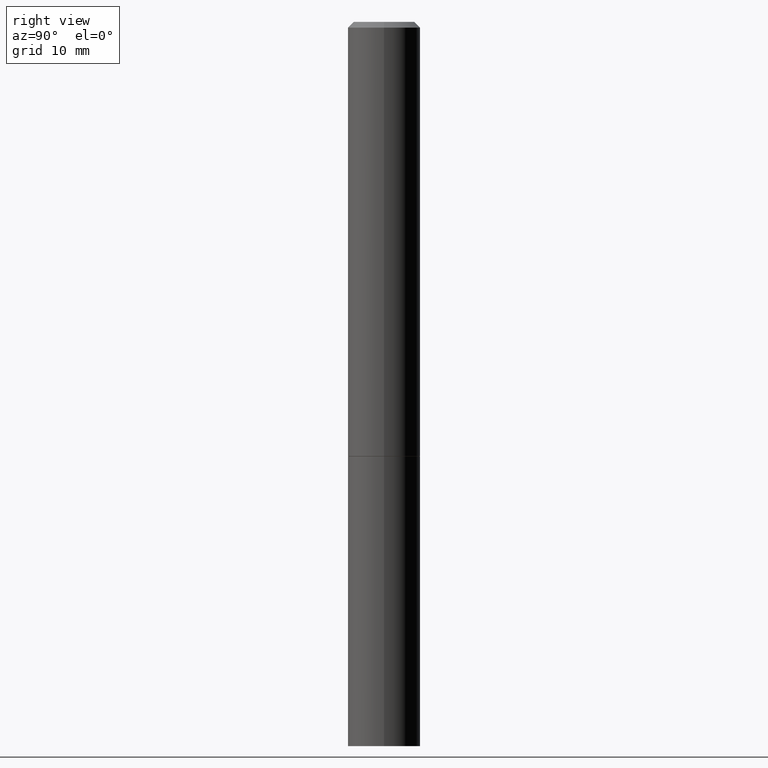
[diagram: clean part render]
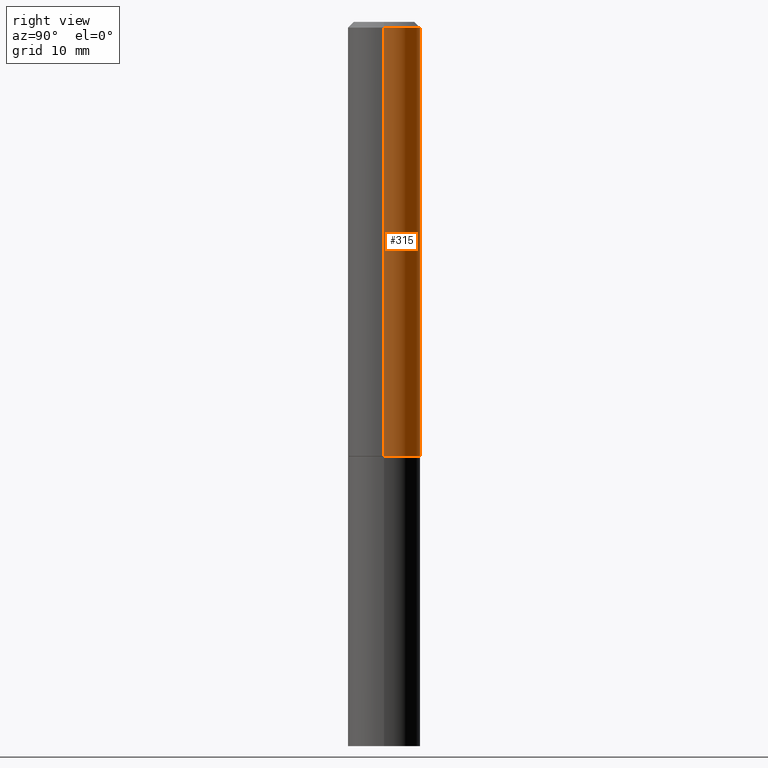
[diagram: same view with one face highlighted and labeled with its STEP entity id]
A machine part, right view. The second image highlights one B-rep face of the part: STEP entity #315.
In plain terms, the highlighted cylindrical surface (edge-blend (fillet) strip) has radius 3.175 mm, axis along (-0, 0, 1).
Its self-contained STEP definition (entity closure, byte-faithful):
#33 = EDGE_CURVE ( 'NONE', #320, #193, #283, .T. ) ;
#38 = CARTESIAN_POINT ( 'NONE',  ( 0.1250000000000000278, -6.106600861636660086E-15, -1.499000000000000110 ) ) ;
#49 = LINE ( 'NONE', #310, #242 ) ;
#50 = DIRECTION ( 'NONE',  ( -2.445468806185136877E-29, 3.491481338843145188E-15, 1.000000000000000000 ) ) ;
#55 = ORIENTED_EDGE ( 'NONE', *, *, #33, .F. ) ;
#95 = FACE_OUTER_BOUND ( 'NONE', #99, .T. ) ;
#99 = EDGE_LOOP ( 'NONE', ( #210, #317, #55, #355 ) ) ;
#141 = CIRCLE ( 'NONE', #170, 0.1250000000000000278 ) ;
#145 = CARTESIAN_POINT ( 'NONE',  ( 3.665757740471519853E-29, -5.233730526925875958E-15, -1.499000000000000110 ) ) ;
#146 = CARTESIAN_POINT ( 'NONE',  ( -0.1250000000000000555, -1.763601657151242227E-15, -1.499000000000000110 ) ) ;
#153 = EDGE_CURVE ( 'NONE', #297, #193, #49, .T. ) ;
#156 = EDGE_CURVE ( 'NONE', #359, #320, #198, .T. ) ;
#162 = CARTESIAN_POINT ( 'NONE',  ( -0.1249999999999998335, 8.030407079339190545E-16, -0.02000000000000006287 ) ) ;
#163 = AXIS2_PLACEMENT_3D ( 'NONE', #215, #251, #227 ) ;
#170 = AXIS2_PLACEMENT_3D ( 'NONE', #145, #234, #342 ) ;
#176 = DIRECTION ( 'NONE',  ( 1.000000000000000000, -6.982962677686266711E-15, 4.876176775795935793E-29 ) ) ;
#193 = VERTEX_POINT ( 'NONE', #162 ) ;
#198 = LINE ( 'NONE', #338, #288 ) ;
#210 = ORIENTED_EDGE ( 'NONE', *, *, #257, .T. ) ;
#215 = CARTESIAN_POINT ( 'NONE',  ( 4.890937612370288923E-31, -6.982962677686312563E-17, -0.02000000000000006287 ) ) ;
#227 = DIRECTION ( 'NONE',  ( 1.000000000000000000, -6.982962677686266711E-15, 0.000000000000000000 ) ) ;
#234 = DIRECTION ( 'NONE',  ( -2.445468806185136597E-29, 3.491481338843145583E-15, 1.000000000000000000 ) ) ;
#241 = CYLINDRICAL_SURFACE ( 'NONE', #334, 0.1249999999999999306 ) ;
#242 = VECTOR ( 'NONE', #50, 39.37007874015748143 ) ;
#247 = CARTESIAN_POINT ( 'NONE',  ( 0.000000000000000000, 0.000000000000000000, 0.000000000000000000 ) ) ;
#251 = DIRECTION ( 'NONE',  ( -2.445468806185136597E-29, 3.491481338843145583E-15, 1.000000000000000000 ) ) ;
#257 = EDGE_CURVE ( 'NONE', #359, #297, #141, .T. ) ;
#283 = CIRCLE ( 'NONE', #163, 0.1249999999999998335 ) ;
#288 = VECTOR ( 'NONE', #366, 39.37007874015748143 ) ;
#297 = VERTEX_POINT ( 'NONE', #146 ) ;
#298 = DIRECTION ( 'NONE',  ( -2.445468806185136597E-29, 3.491481338843145583E-15, 1.000000000000000000 ) ) ;
#310 = CARTESIAN_POINT ( 'NONE',  ( -0.1249999999999999306, 8.881784197001247393E-16, -6.148668862818628724E-30 ) ) ;
#315 = ADVANCED_FACE ( 'NONE', ( #95 ), #241, .T. ) ;
#317 = ORIENTED_EDGE ( 'NONE', *, *, #153, .T. ) ;
#320 = VERTEX_POINT ( 'NONE', #350 ) ;
#334 = AXIS2_PLACEMENT_3D ( 'NONE', #247, #298, #176 ) ;
#338 = CARTESIAN_POINT ( 'NONE',  ( 0.1249999999999999306, -8.728703347107828458E-16, 6.095220969744916238E-30 ) ) ;
#342 = DIRECTION ( 'NONE',  ( 1.000000000000000000, -6.982962677686269077E-15, 0.000000000000000000 ) ) ;
#350 = CARTESIAN_POINT ( 'NONE',  ( 0.1249999999999998335, -9.273918764983033630E-16, -0.02000000000000006287 ) ) ;
#355 = ORIENTED_EDGE ( 'NONE', *, *, #156, .F. ) ;
#359 = VERTEX_POINT ( 'NONE', #38 ) ;
#366 = DIRECTION ( 'NONE',  ( -2.445468806185136877E-29, 3.491481338843145188E-15, 1.000000000000000000 ) ) ;